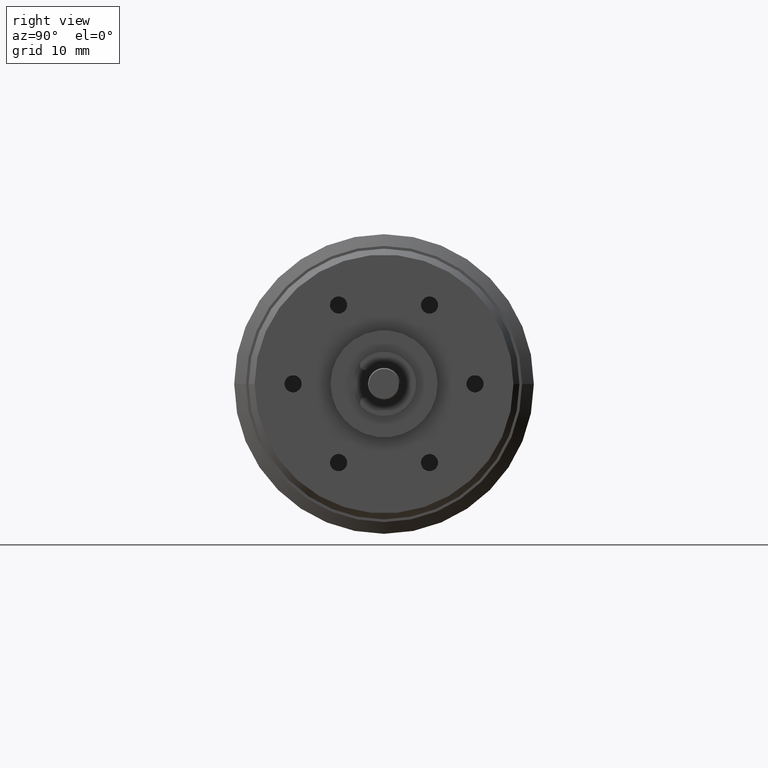
[diagram: clean part render]
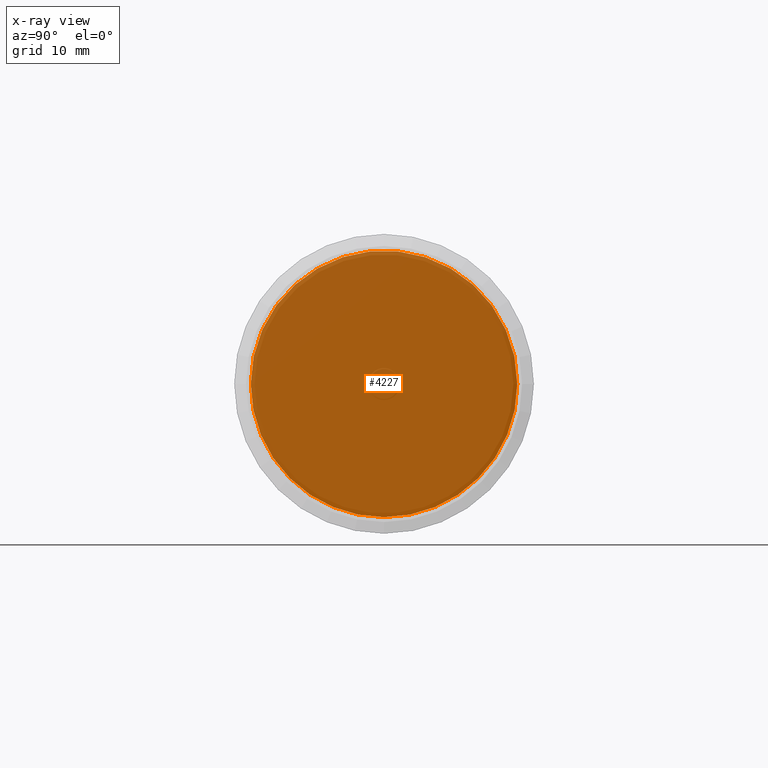
[diagram: x-ray — body ghosted, one internal face saturated and labeled with its STEP entity id]
A machine part, right view, then the same camera in x-ray: the body is ghosted and one INTERNAL B-rep face — a face not visible from any outside direction — is saturated and labeled: STEP entity #4227.
In plain terms, the highlighted planar face has unit normal (1, 0, 0).
Its self-contained STEP definition (entity closure, byte-faithful):
#4164=CARTESIAN_POINT('',(1.101341240428E-13,-2.884151614854E-13,
-9.192646643896E-14));
#4165=DIRECTION('',(-1.E0,0.E0,0.E0));
#4166=DIRECTION('',(0.E0,-1.E0,-5.875344650833E-10));
#4167=AXIS2_PLACEMENT_3D('',#4164,#4165,#4166);
#4169=CARTESIAN_POINT('',(1.545430450278E-13,-3.381531529886E-13,0.E0));
#4170=DIRECTION('',(-1.E0,0.E0,0.E0));
#4171=DIRECTION('',(0.E0,-4.019467347572E-13,-1.E0));
#4172=AXIS2_PLACEMENT_3D('',#4169,#4170,#4171);
#4174=CARTESIAN_POINT('',(1.545430450278E-13,-3.381531529886E-13,0.E0));
#4175=DIRECTION('',(-1.E0,0.E0,0.E0));
#4176=DIRECTION('',(0.E0,1.E0,5.875892895556E-10));
#4177=AXIS2_PLACEMENT_3D('',#4174,#4175,#4176);
#4208=CARTESIAN_POINT('',(2.468087956231E-10,-1.245000794553E1,
-6.911448818359E-9));
#4209=VERTEX_POINT('',#4208);
#4210=CARTESIAN_POINT('',(2.467063497935E-10,1.245000794553E1,
6.911901404678E-9));
#4211=VERTEX_POINT('',#4210);
#4212=CARTESIAN_POINT('',(1.545430450278E-13,-5.342393194496E-12,
-1.245000794578E1));
#4213=VERTEX_POINT('',#4212);
#4214=CARTESIAN_POINT('',(0.E0,-3.104183576852E-13,-2.340760834496E-6));
#4215=DIRECTION('',(1.E0,0.E0,0.E0));
#4216=DIRECTION('',(0.E0,1.E0,0.E0));
#4217=AXIS2_PLACEMENT_3D('',#4214,#4215,#4216);
#4218=PLANE('',#4217);
#4220=ORIENTED_EDGE('',*,*,#4219,.F.);
#4222=ORIENTED_EDGE('',*,*,#4221,.F.);
#4224=ORIENTED_EDGE('',*,*,#4223,.F.);
#4225=EDGE_LOOP('',(#4220,#4222,#4224));
#4226=FACE_OUTER_BOUND('',#4225,.F.);
#4227=ADVANCED_FACE('',(#4226),#4218,.F.);
#4168=CIRCLE('',#4167,1.245000794578E1);
#4173=CIRCLE('',#4172,1.245000794578E1);
#4178=CIRCLE('',#4177,1.245000794578E1);
#4219=EDGE_CURVE('',#4209,#4211,#4168,.T.);
#4221=EDGE_CURVE('',#4213,#4209,#4173,.T.);
#4223=EDGE_CURVE('',#4211,#4213,#4178,.T.);